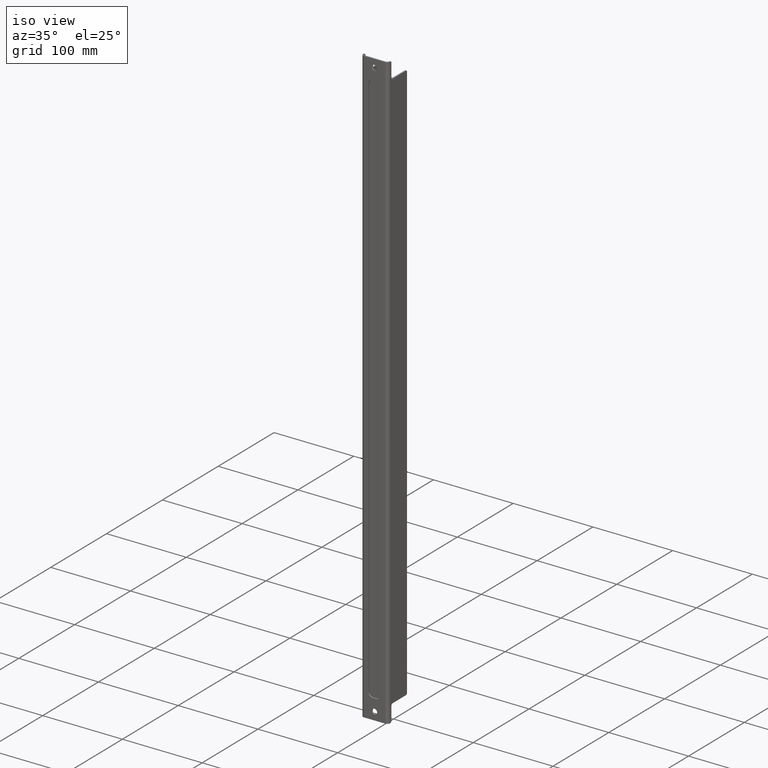
[diagram: clean part render]
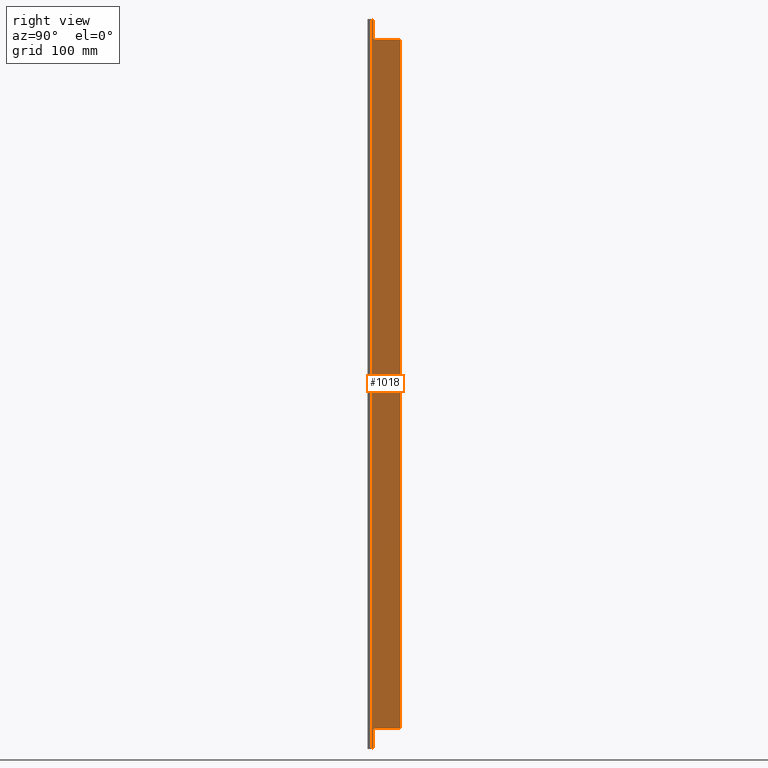
[diagram: tour spotlight — one face highlighted and labeled with its STEP entity id]
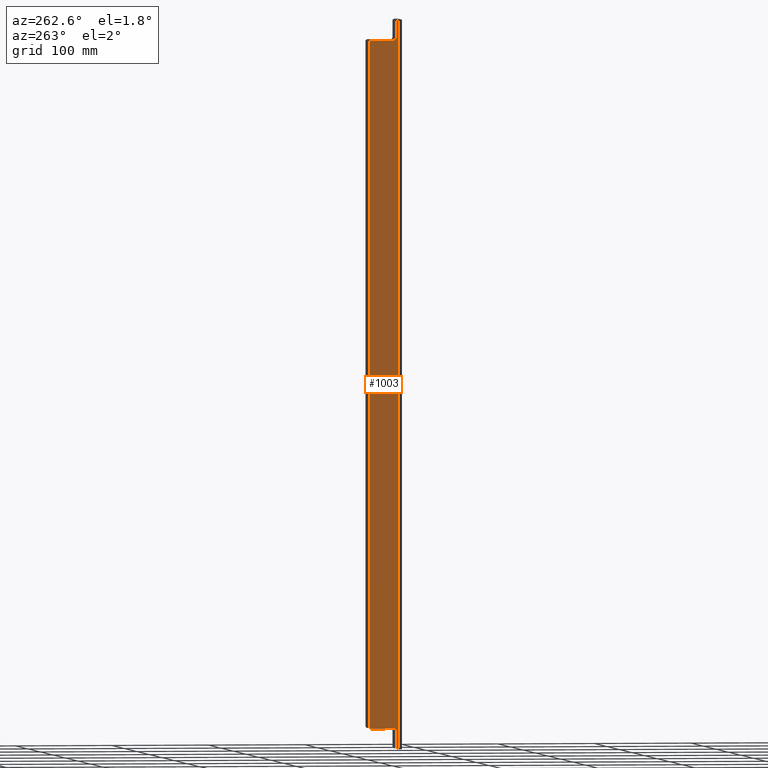
[diagram: tour spotlight — one face highlighted and labeled with its STEP entity id]
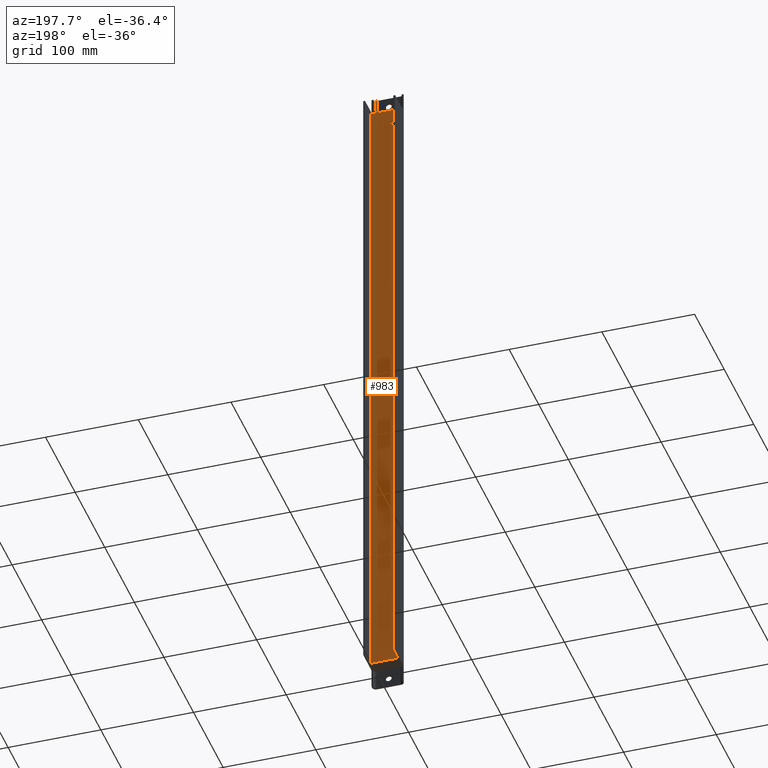
[diagram: tour spotlight — one face highlighted and labeled with its STEP entity id]
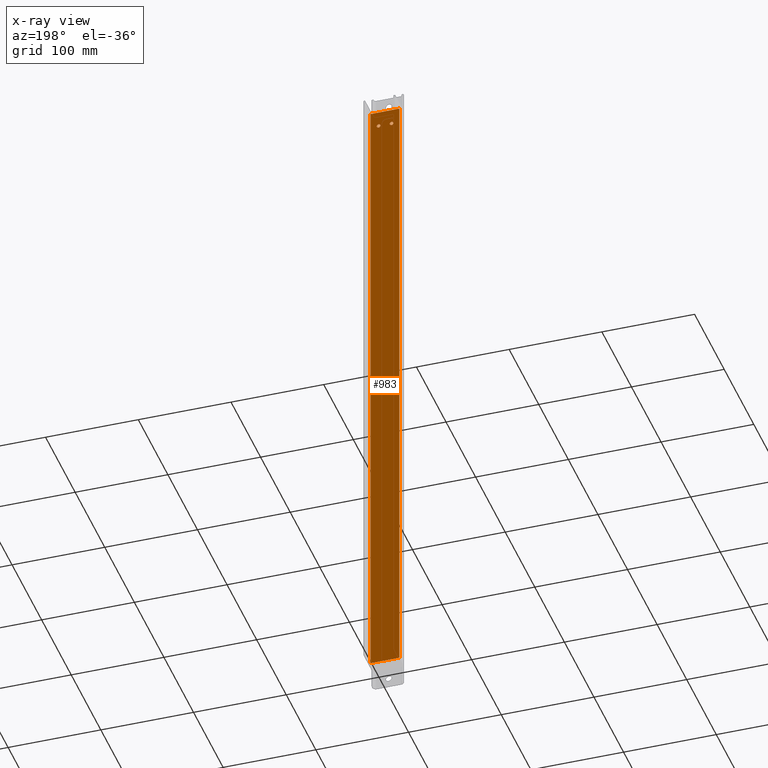
[diagram: x-ray of the same camera — body ghosted, this tour face saturated]
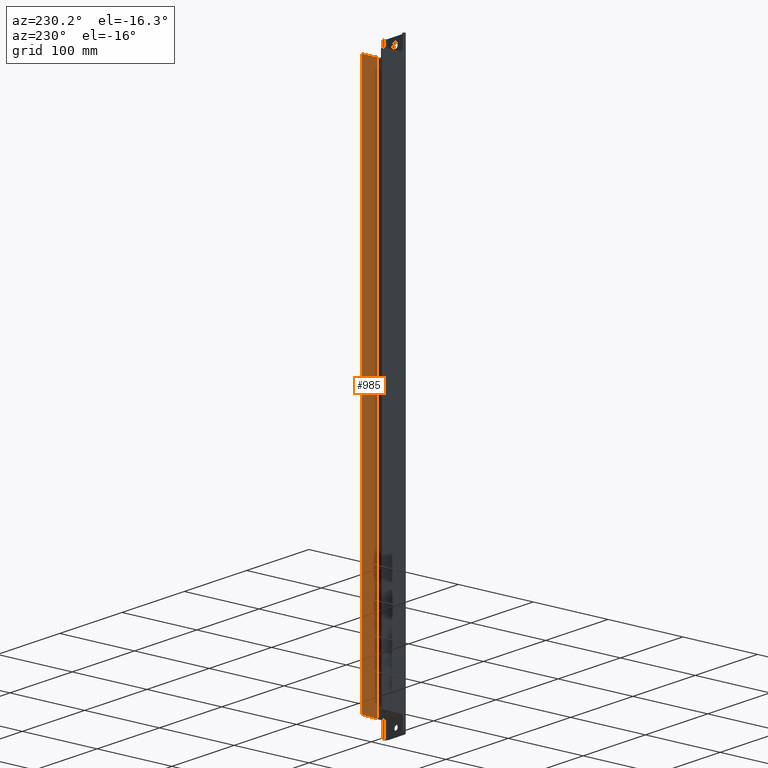
[diagram: tour spotlight — one face highlighted and labeled with its STEP entity id]
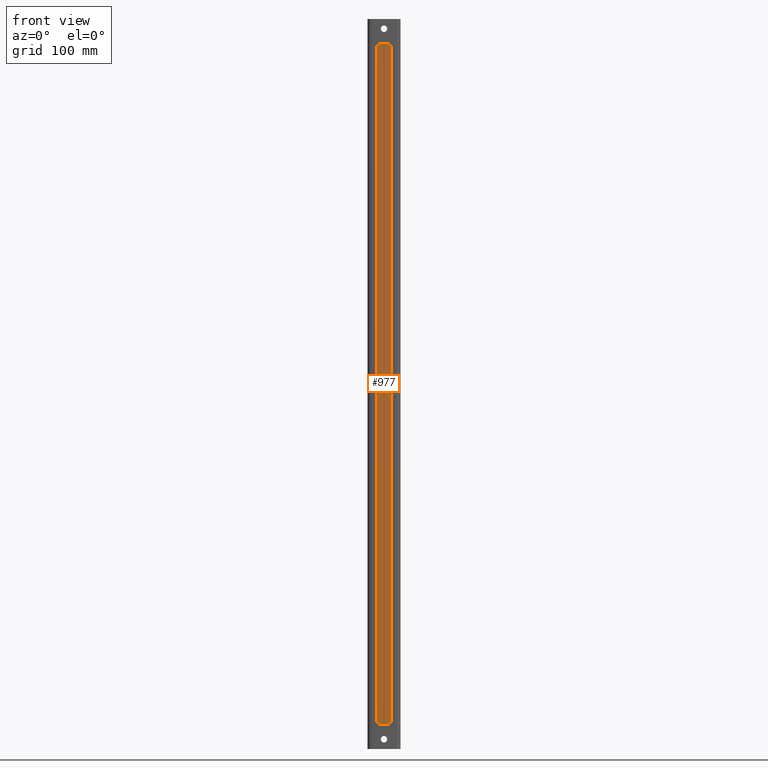
[diagram: tour spotlight — one face highlighted and labeled with its STEP entity id]
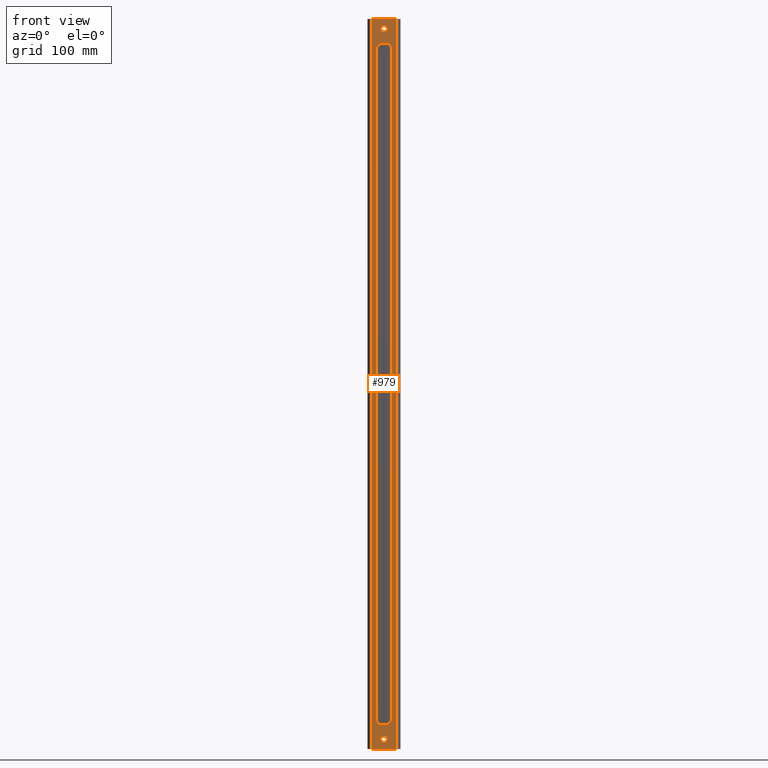
[diagram: tour spotlight — one face highlighted and labeled with its STEP entity id]
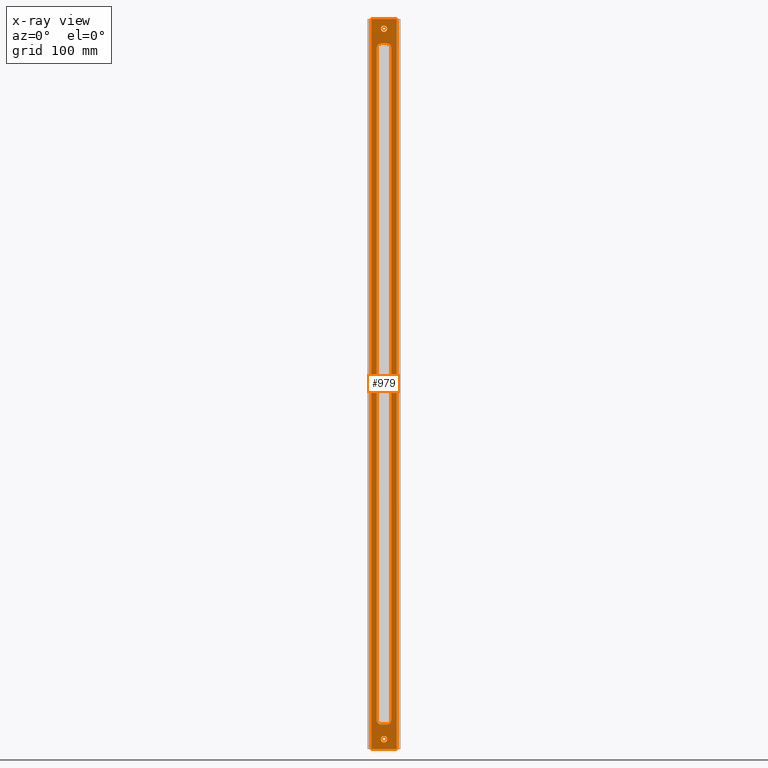
[diagram: x-ray of the same camera — body ghosted, this tour face saturated]
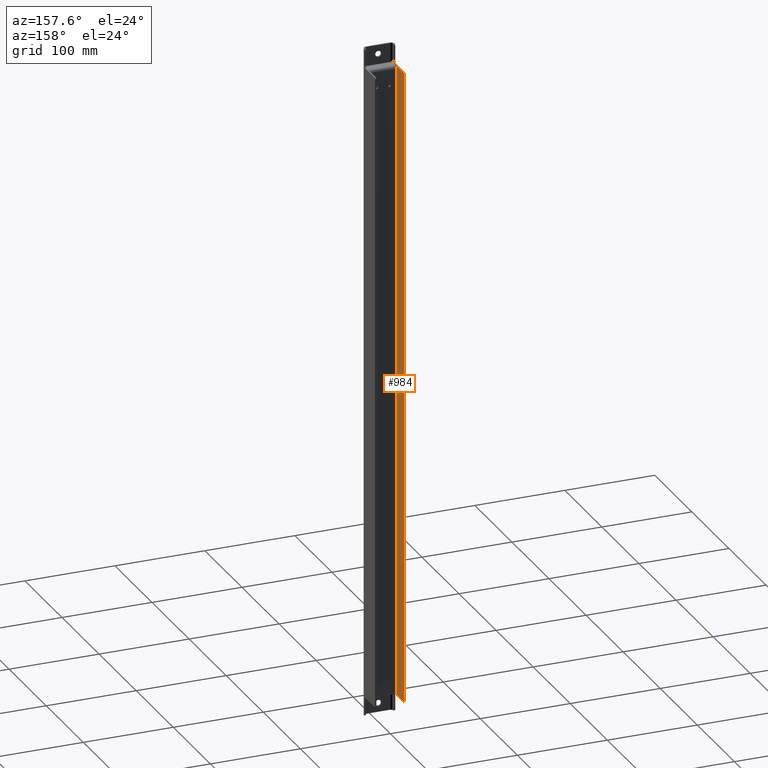
[diagram: tour spotlight — one face highlighted and labeled with its STEP entity id]
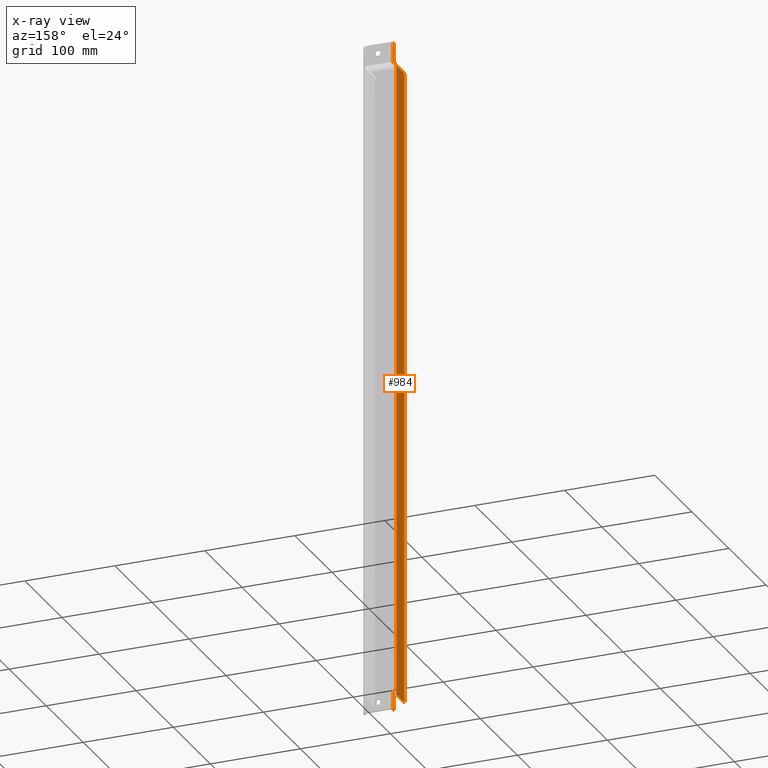
[diagram: x-ray of the same camera — body ghosted, this tour face saturated]
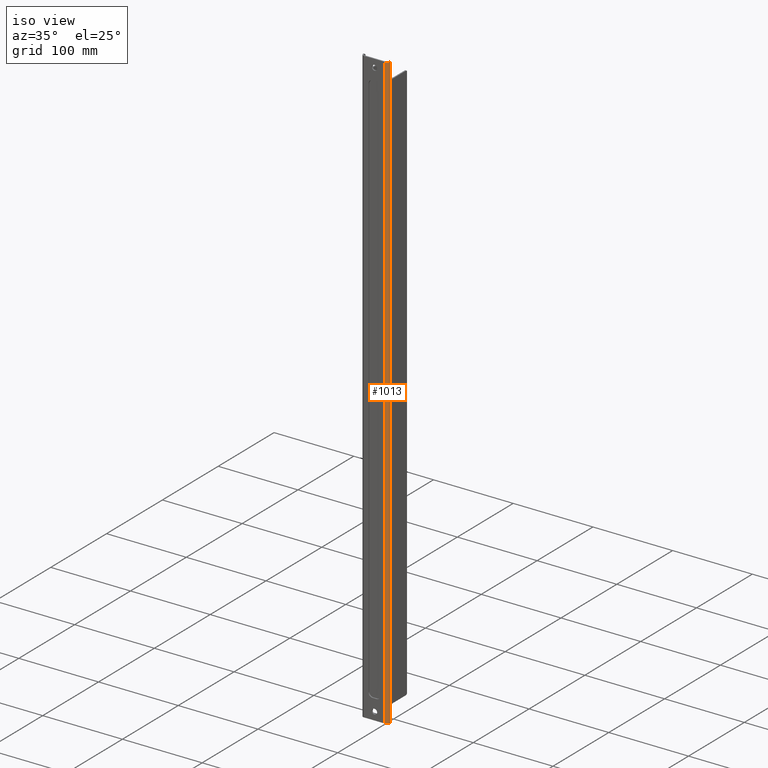
[diagram: tour spotlight — one face highlighted and labeled with its STEP entity id]
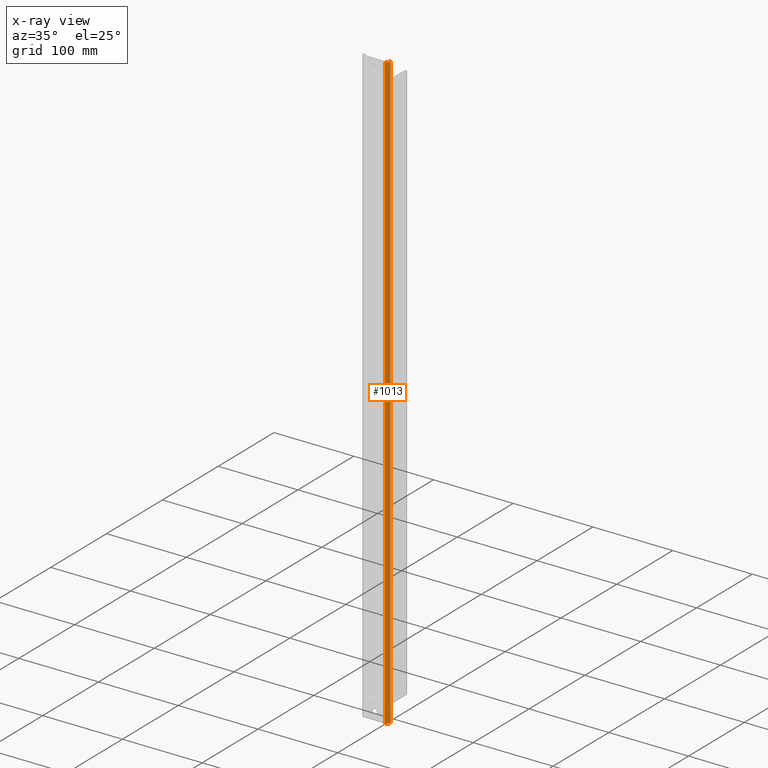
[diagram: x-ray of the same camera — body ghosted, this tour face saturated]
A machine part: a face-by-face anatomy tour. The part has 57 B-rep faces; the first image is the clean iso view, then the 8 largest visible faces are spotlighted one at a time (largest first), each with its STEP entity span.

Face 1 — right view, entity #1018. In plain terms, the highlighted planar face has unit normal (1, -0, 0).
Definition (entity closure, byte-faithful):
#90=LINE('',#1720,#178);
#95=LINE('',#1734,#183);
#96=LINE('',#1738,#184);
#97=LINE('',#1742,#185);
#98=LINE('',#1746,#186);
#99=LINE('',#1750,#187);
#178=VECTOR('',#1410,1000.);
#183=VECTOR('',#1429,1000.);
#184=VECTOR('',#1432,1000.);
#185=VECTOR('',#1435,1000.);
#186=VECTOR('',#1438,1000.);
#187=VECTOR('',#1441,1000.);
#219=PLANE('',#1140);
#457=ORIENTED_EDGE('',*,*,#633,.T.);
#458=ORIENTED_EDGE('',*,*,#636,.T.);
#459=ORIENTED_EDGE('',*,*,#640,.T.);
#460=ORIENTED_EDGE('',*,*,#641,.T.);
#461=ORIENTED_EDGE('',*,*,#642,.T.);
#462=ORIENTED_EDGE('',*,*,#643,.T.);
#463=ORIENTED_EDGE('',*,*,#644,.F.);
#464=ORIENTED_EDGE('',*,*,#645,.T.);
#465=ORIENTED_EDGE('',*,*,#646,.T.);
#466=ORIENTED_EDGE('',*,*,#647,.T.);
#467=ORIENTED_EDGE('',*,*,#648,.T.);
#468=ORIENTED_EDGE('',*,*,#638,.T.);
#633=EDGE_CURVE('',#741,#742,#90,.T.);
#636=EDGE_CURVE('',#742,#743,#803,.T.);
#638=EDGE_CURVE('',#744,#741,#804,.T.);
#640=EDGE_CURVE('',#743,#745,#95,.T.);
#641=EDGE_CURVE('',#745,#746,#805,.T.);
#642=EDGE_CURVE('',#746,#747,#96,.T.);
#643=EDGE_CURVE('',#747,#748,#806,.T.);
#644=EDGE_CURVE('',#749,#748,#97,.T.);
#645=EDGE_CURVE('',#749,#750,#807,.T.);
#646=EDGE_CURVE('',#750,#751,#98,.T.);
#647=EDGE_CURVE('',#751,#752,#808,.T.);
#648=EDGE_CURVE('',#752,#744,#99,.T.);
#741=VERTEX_POINT('',#1717);
#742=VERTEX_POINT('',#1719);
#743=VERTEX_POINT('',#1727);
#744=VERTEX_POINT('',#1731);
#745=VERTEX_POINT('',#1735);
#746=VERTEX_POINT('',#1737);
#747=VERTEX_POINT('',#1739);
#748=VERTEX_POINT('',#1741);
#749=VERTEX_POINT('',#1743);
#750=VERTEX_POINT('',#1745);
#751=VERTEX_POINT('',#1747);
#752=VERTEX_POINT('',#1749);
#803=CIRCLE('',#1137,2.);
#804=CIRCLE('',#1139,2.);
#805=CIRCLE('',#1141,2.);
#806=CIRCLE('',#1142,2.);
#807=CIRCLE('',#1143,2.);
#808=CIRCLE('',#1144,2.);
#865=EDGE_LOOP('',(#457,#458,#459,#460,#461,#462,#463,#464,#465,#466,#467,
#468));
#933=FACE_BOUND('',#865,.T.);
#1018=ADVANCED_FACE('',(#933),#219,.T.);
#1137=AXIS2_PLACEMENT_3D('',#1726,#1419,#1420);
#1139=AXIS2_PLACEMENT_3D('',#1730,#1424,#1425);
#1140=AXIS2_PLACEMENT_3D('',#1733,#1427,#1428);
#1141=AXIS2_PLACEMENT_3D('',#1736,#1430,#1431);
#1142=AXIS2_PLACEMENT_3D('',#1740,#1433,#1434);
#1143=AXIS2_PLACEMENT_3D('',#1744,#1436,#1437);
#1144=AXIS2_PLACEMENT_3D('',#1748,#1439,#1440);
#1410=DIRECTION('',(8.93686180177302E-17,1.31838984174237E-16,-1.));
#1419=DIRECTION('',(1.,-4.06163832661068E-16,8.93686180177302E-17));
#1420=DIRECTION('',(8.93686180177302E-17,1.66533453693773E-16,-1.));
#1424=DIRECTION('',(1.,-4.06163832661068E-16,8.93686180177302E-17));
#1425=DIRECTION('',(8.93686180177302E-17,1.66533453693773E-16,-1.));
#1427=DIRECTION('',(1.,-4.06163832661068E-16,8.93686180177302E-17));
#1428=DIRECTION('',(8.93686180177302E-17,1.66533453693773E-16,-1.));
#1429=DIRECTION('',(-8.93686180177302E-17,-1.66533453693773E-16,1.));
#1430=DIRECTION('',(-1.,4.06163832661068E-16,-8.93686180177302E-17));
#1431=DIRECTION('',(8.93686180177302E-17,1.66533453693773E-16,-1.));
#1432=DIRECTION('',(4.06163832661068E-16,1.,1.66533453693773E-16));
#1433=DIRECTION('',(1.,-4.06163832661068E-16,8.93686180177302E-17));
#1434=DIRECTION('',(8.93686180177302E-17,1.66533453693773E-16,-1.));
#1435=DIRECTION('',(8.93686180177302E-17,1.66533453693773E-16,-1.));
#1436=DIRECTION('',(1.,-4.06163832661068E-16,8.93686180177302E-17));
#1437=DIRECTION('',(8.93686180177302E-17,1.66533453693773E-16,-1.));
#1438=DIRECTION('',(-4.06163832661068E-16,-1.,-1.66533453693773E-16));
#1439=DIRECTION('',(-1.,4.06163832661068E-16,-8.93686180177302E-17));
#1440=DIRECTION('',(8.93686180177302E-17,1.66533453693773E-16,-1.));
#1441=DIRECTION('',(-8.93686180177302E-17,-4.2624633981144E-17,1.));
#1717=CARTESIAN_POINT('',(17.,-30.0130367319026,375.));
#1719=CARTESIAN_POINT('',(17.0000000000001,-30.0130367319023,-375.));
#1720=CARTESIAN_POINT('',(17.,-30.0130367319026,-1.92994200509913E-15));
#1726=CARTESIAN_POINT('',(17.0000000000002,-30.0130367319021,-373.));
#1727=CARTESIAN_POINT('',(17.0000000000002,-28.0130367319021,-373.));
#1730=CARTESIAN_POINT('',(17.,-30.0130367319026,373.));
#1731=CARTESIAN_POINT('',(17.,-28.0130367319026,373.));
#1733=CARTESIAN_POINT('',(17.,-32.5130367319026,-2.25953946553472E-15));
#1734=CARTESIAN_POINT('',(17.0000000000001,-28.0130367319025,-250.));
#1735=CARTESIAN_POINT('',(17.0000000000001,-28.0130367319025,-356.));
#1736=CARTESIAN_POINT('',(17.0000000000002,-26.0130367319021,-356.));
#1737=CARTESIAN_POINT('',(17.0000000000002,-26.0130367319021,-354.));
#1738=CARTESIAN_POINT('',(17.0000000000002,-9.51303673190205,-354.));
#1739=CARTESIAN_POINT('',(17.,-2.01303673190216,-354.));
#1740=CARTESIAN_POINT('',(17.,-2.01303673190216,-352.));
#1741=CARTESIAN_POINT('',(16.9999999999999,-0.0130367319026145,-352.));
#1742=CARTESIAN_POINT('',(16.9999999999999,-0.0130367319026107,-375.));
#1743=CARTESIAN_POINT('',(16.9999999999998,-0.0130367319026905,352.));
#1744=CARTESIAN_POINT('',(16.9999999999998,-2.01303673190269,352.));
#1745=CARTESIAN_POINT('',(17.,-2.01303673190269,354.));
#1746=CARTESIAN_POINT('',(17.,-9.51303673190258,354.));
#1747=CARTESIAN_POINT('',(17.,-26.0130367319026,354.));
#1748=CARTESIAN_POINT('',(17.,-26.0130367319026,356.));
#1749=CARTESIAN_POINT('',(17.,-28.0130367319026,356.));
#1750=CARTESIAN_POINT('',(17.,-28.0130367319026,500.));

Face 2 — auxiliary view, entity #1003. In plain terms, the highlighted planar face has unit normal (-1, -0, 0).
Definition (entity closure, byte-faithful):
#72=LINE('',#1669,#160);
#77=LINE('',#1681,#165);
#78=LINE('',#1683,#166);
#79=LINE('',#1687,#167);
#80=LINE('',#1691,#168);
#81=LINE('',#1695,#169);
#160=VECTOR('',#1350,1000.);
#165=VECTOR('',#1365,1000.);
#166=VECTOR('',#1366,1000.);
#167=VECTOR('',#1369,1000.);
#168=VECTOR('',#1372,1000.);
#169=VECTOR('',#1375,1000.);
#211=PLANE('',#1117);
#381=ORIENTED_EDGE('',*,*,#614,.F.);
#382=ORIENTED_EDGE('',*,*,#612,.T.);
#383=ORIENTED_EDGE('',*,*,#607,.T.);
#384=ORIENTED_EDGE('',*,*,#609,.T.);
#385=ORIENTED_EDGE('',*,*,#615,.F.);
#386=ORIENTED_EDGE('',*,*,#616,.T.);
#387=ORIENTED_EDGE('',*,*,#617,.F.);
#388=ORIENTED_EDGE('',*,*,#618,.T.);
#389=ORIENTED_EDGE('',*,*,#619,.F.);
#390=ORIENTED_EDGE('',*,*,#620,.T.);
#391=ORIENTED_EDGE('',*,*,#621,.F.);
#392=ORIENTED_EDGE('',*,*,#622,.T.);
#607=EDGE_CURVE('',#729,#730,#72,.F.);
#609=EDGE_CURVE('',#730,#731,#795,.T.);
#612=EDGE_CURVE('',#732,#729,#796,.T.);
#614=EDGE_CURVE('',#732,#733,#77,.T.);
#615=EDGE_CURVE('',#734,#731,#78,.T.);
#616=EDGE_CURVE('',#734,#735,#797,.T.);
#617=EDGE_CURVE('',#736,#735,#79,.T.);
#618=EDGE_CURVE('',#736,#737,#798,.T.);
#619=EDGE_CURVE('',#738,#737,#80,.T.);
#620=EDGE_CURVE('',#738,#739,#799,.T.);
#621=EDGE_CURVE('',#740,#739,#81,.T.);
#622=EDGE_CURVE('',#740,#733,#800,.T.);
#729=VERTEX_POINT('',#1666);
#730=VERTEX_POINT('',#1668);
#731=VERTEX_POINT('',#1672);
#732=VERTEX_POINT('',#1678);
#733=VERTEX_POINT('',#1682);
#734=VERTEX_POINT('',#1684);
#735=VERTEX_POINT('',#1686);
#736=VERTEX_POINT('',#1688);
#737=VERTEX_POINT('',#1690);
#738=VERTEX_POINT('',#1692);
#739=VERTEX_POINT('',#1694);
#740=VERTEX_POINT('',#1696);
#795=CIRCLE('',#1114,2.);
#796=CIRCLE('',#1116,2.);
#797=CIRCLE('',#1118,2.);
#798=CIRCLE('',#1119,2.);
#799=CIRCLE('',#1120,2.);
#800=CIRCLE('',#1121,2.);
#850=EDGE_LOOP('',(#381,#382,#383,#384,#385,#386,#387,#388,#389,#390,#391,
#392));
#918=FACE_BOUND('',#850,.T.);
#1003=ADVANCED_FACE('',(#918),#211,.T.);
#1114=AXIS2_PLACEMENT_3D('',#1673,#1354,#1355);
#1116=AXIS2_PLACEMENT_3D('',#1677,#1360,#1361);
#1117=AXIS2_PLACEMENT_3D('',#1680,#1363,#1364);
#1118=AXIS2_PLACEMENT_3D('',#1685,#1367,#1368);
#1119=AXIS2_PLACEMENT_3D('',#1689,#1370,#1371);
#1120=AXIS2_PLACEMENT_3D('',#1693,#1373,#1374);
#1121=AXIS2_PLACEMENT_3D('',#1697,#1376,#1377);
#1350=DIRECTION('',(-3.32185076179637E-17,1.66533453693773E-16,-1.));
#1354=DIRECTION('',(-1.,-3.10099449920508E-15,3.32185076179632E-17));
#1355=DIRECTION('',(3.06328311929254E-15,-1.,-1.66533453693773E-16));
#1360=DIRECTION('',(-1.,-3.10099449920508E-15,3.32185076179632E-17));
#1361=DIRECTION('',(3.06328311929254E-15,-1.,-1.66533453693773E-16));
#1363=DIRECTION('',(-1.,-3.10099449920508E-15,3.32185076179632E-17));
#1364=DIRECTION('',(3.10099449920508E-15,-1.,-1.66533453693773E-16));
#1365=DIRECTION('',(-8.93686180177302E-17,-1.66533453693773E-16,1.));
#1366=DIRECTION('',(-8.93686180177302E-17,-4.2624633981144E-17,1.));
#1367=DIRECTION('',(1.,3.10099449920508E-15,-3.32185076179632E-17));
#1368=DIRECTION('',(3.06328311929254E-15,-1.,-1.66533453693773E-16));
#1369=DIRECTION('',(-4.06163832661068E-16,-1.,-1.66533453693773E-16));
#1370=DIRECTION('',(-1.,-3.10099449920508E-15,3.32185076179632E-17));
#1371=DIRECTION('',(3.06328311929254E-15,-1.,-1.66533453693773E-16));
#1372=DIRECTION('',(3.32185076179638E-17,-1.66533453693773E-16,1.));
#1373=DIRECTION('',(-1.,-3.10099449920508E-15,3.32185076179632E-17));
#1374=DIRECTION('',(3.06328311929254E-15,-1.,-1.66533453693773E-16));
#1375=DIRECTION('',(4.06163832661068E-16,1.,1.66533453693773E-16));
#1376=DIRECTION('',(1.,3.10099449920508E-15,-3.32185076179632E-17));
#1377=DIRECTION('',(3.06328311929254E-15,-1.,-1.66533453693773E-16));
#1666=CARTESIAN_POINT('',(-16.9999999999999,-30.0130367319023,-375.));
#1668=CARTESIAN_POINT('',(-16.9999999999999,-30.0130367319026,375.));
#1669=CARTESIAN_POINT('',(-16.9999999999999,-30.0130367319026,-2.48839868821381E-15));
#1672=CARTESIAN_POINT('',(-16.9999999999999,-28.0130367319027,373.));
#1673=CARTESIAN_POINT('',(-16.9999999999999,-30.0130367319026,373.));
#1677=CARTESIAN_POINT('',(-16.9999999999999,-30.0130367319021,-373.));
#1678=CARTESIAN_POINT('',(-16.9999999999998,-28.0130367319021,-373.));
#1680=CARTESIAN_POINT('',(-16.9999999999999,-32.5130367319027,-3.94163086918529E-15));
#1681=CARTESIAN_POINT('',(-16.9999999999999,-28.0130367319026,-250.));
#1682=CARTESIAN_POINT('',(-16.9999999999998,-28.0130367319026,-356.));
#1683=CARTESIAN_POINT('',(-16.9999999999999,-28.0130367319027,500.));
#1684=CARTESIAN_POINT('',(-16.9999999999999,-28.0130367319026,356.));
#1685=CARTESIAN_POINT('',(-16.9999999999999,-26.0130367319026,356.));
#1686=CARTESIAN_POINT('',(-16.9999999999999,-26.0130367319026,354.));
#1687=CARTESIAN_POINT('',(-16.9999999999999,-9.51303673190265,354.));
#1688=CARTESIAN_POINT('',(-17.0000000000001,-2.01303673190275,354.));
#1689=CARTESIAN_POINT('',(-17.0000000000001,-2.01303673190275,352.));
#1690=CARTESIAN_POINT('',(-17.0000000000001,-0.0130367319027977,352.));
#1691=CARTESIAN_POINT('',(-17.0000000000001,-0.0130367319028015,375.));
#1692=CARTESIAN_POINT('',(-17.0000000000001,-0.0130367319022291,-352.));
#1693=CARTESIAN_POINT('',(-17.0000000000001,-2.01303673190223,-352.));
#1694=CARTESIAN_POINT('',(-16.9999999999998,-2.01303673190217,-354.));
#1695=CARTESIAN_POINT('',(-16.9999999999998,-9.51303673190212,-354.));
#1696=CARTESIAN_POINT('',(-16.9999999999998,-26.0130367319021,-354.));
#1697=CARTESIAN_POINT('',(-16.9999999999999,-26.0130367319021,-356.));

Face 3 — auxiliary view, entity #983. An x-ray twin of the same camera follows (body ghosted, this face saturated) — the face is partly hidden behind the body. In plain terms, the highlighted planar face has unit normal (0, 1, -0).
Definition (entity closure, byte-faithful):
#46=LINE('',#1574,#134);
#47=LINE('',#1577,#135);
#48=LINE('',#1579,#136);
#49=LINE('',#1581,#137);
#134=VECTOR('',#1246,1000.);
#135=VECTOR('',#1247,1000.);
#136=VECTOR('',#1248,1000.);
#137=VECTOR('',#1249,1000.);
#204=PLANE('',#1073);
#275=ORIENTED_EDGE('',*,*,#514,.F.);
#276=ORIENTED_EDGE('',*,*,#516,.F.);
#277=ORIENTED_EDGE('',*,*,#559,.T.);
#278=ORIENTED_EDGE('',*,*,#560,.T.);
#279=ORIENTED_EDGE('',*,*,#561,.T.);
#280=ORIENTED_EDGE('',*,*,#562,.T.);
#514=EDGE_CURVE('',#658,#658,#754,.T.);
#516=EDGE_CURVE('',#660,#660,#756,.T.);
#559=EDGE_CURVE('',#701,#702,#46,.T.);
#560=EDGE_CURVE('',#702,#703,#47,.T.);
#561=EDGE_CURVE('',#703,#704,#48,.T.);
#562=EDGE_CURVE('',#704,#701,#49,.T.);
#658=VERTEX_POINT('',#1477);
#660=VERTEX_POINT('',#1484);
#701=VERTEX_POINT('',#1575);
#702=VERTEX_POINT('',#1576);
#703=VERTEX_POINT('',#1578);
#704=VERTEX_POINT('',#1580);
#754=CIRCLE('',#1045,2.);
#756=CIRCLE('',#1050,2.);
#826=EDGE_LOOP('',(#275));
#827=EDGE_LOOP('',(#276));
#828=EDGE_LOOP('',(#277,#278,#279,#280));
#894=FACE_BOUND('',#826,.T.);
#895=FACE_BOUND('',#827,.T.);
#896=FACE_BOUND('',#828,.T.);
#983=ADVANCED_FACE('',(#894,#895,#896),#204,.T.);
#1045=AXIS2_PLACEMENT_3D('',#1476,#1162,#1163);
#1050=AXIS2_PLACEMENT_3D('',#1483,#1172,#1173);
#1073=AXIS2_PLACEMENT_3D('',#1573,#1244,#1245);
#1162=DIRECTION('',(4.06163832661068E-16,1.,-3.32698173895069E-15));
#1163=DIRECTION('',(9.21833731195405E-17,-3.32698173895069E-15,-1.));
#1172=DIRECTION('',(4.06163832661068E-16,1.,-3.32698173895069E-15));
#1173=DIRECTION('',(9.21833731195405E-17,-3.32698173895069E-15,-1.));
#1244=DIRECTION('',(4.06163832661068E-16,1.,-3.32494788514936E-15));
#1245=DIRECTION('',(-1.,4.06163832661068E-16,6.76398658185478E-32));
#1246=DIRECTION('',(-1.21257418434899E-16,-3.32494788514936E-15,-1.));
#1247=DIRECTION('',(-1.,4.06163832661068E-16,6.76398658185534E-32));
#1248=DIRECTION('',(1.21257418434899E-16,3.32494788514936E-15,1.));
#1249=DIRECTION('',(1.,-4.06163832661068E-16,-6.76398658185534E-32));
#1476=CARTESIAN_POINT('',(7.,-20.513036731901,333.5));
#1477=CARTESIAN_POINT('',(7.,-20.513036731901,331.5));
#1483=CARTESIAN_POINT('',(-7.,-20.513036731901,333.5));
#1484=CARTESIAN_POINT('',(-7.,-20.513036731901,331.5));
#1573=CARTESIAN_POINT('',(4.66701312594012E-15,-20.5130367319013,-3.78058567638503E-14));
#1574=CARTESIAN_POINT('',(15.5000000000001,-20.5130367319001,350.5));
#1575=CARTESIAN_POINT('',(15.5,-20.5130367319009,350.5));
#1576=CARTESIAN_POINT('',(15.5,-20.5130367319011,-350.5));
#1577=CARTESIAN_POINT('',(-10.,-20.5130367319011,-350.5));
#1578=CARTESIAN_POINT('',(-15.4999999999999,-20.5130367319012,-350.5));
#1579=CARTESIAN_POINT('',(-15.4999999999998,-20.5130367319002,350.5));
#1580=CARTESIAN_POINT('',(-15.4999999999998,-20.5130367319002,350.5));
#1581=CARTESIAN_POINT('',(9.99999999999997,-20.5130367319009,350.5));

Face 4 — auxiliary view, entity #985. In plain terms, the highlighted planar face has unit normal (1, -0, 0).
Definition (entity closure, byte-faithful):
#40=LINE('',#1554,#128);
#45=LINE('',#1569,#133);
#46=LINE('',#1574,#134);
#57=LINE('',#1613,#145);
#58=LINE('',#1617,#146);
#59=LINE('',#1621,#147);
#60=LINE('',#1625,#148);
#61=LINE('',#1629,#149);
#62=LINE('',#1633,#150);
#63=LINE('',#1637,#151);
#128=VECTOR('',#1228,1000.);
#133=VECTOR('',#1239,1000.);
#134=VECTOR('',#1246,1000.);
#145=VECTOR('',#1281,1000.);
#146=VECTOR('',#1284,1000.);
#147=VECTOR('',#1287,1000.);
#148=VECTOR('',#1290,1000.);
#149=VECTOR('',#1293,1000.);
#150=VECTOR('',#1296,1000.);
#151=VECTOR('',#1299,1000.);
#206=PLANE('',#1083);
#299=ORIENTED_EDGE('',*,*,#556,.F.);
#300=ORIENTED_EDGE('',*,*,#578,.T.);
#301=ORIENTED_EDGE('',*,*,#559,.F.);
#302=ORIENTED_EDGE('',*,*,#579,.T.);
#303=ORIENTED_EDGE('',*,*,#549,.F.);
#304=ORIENTED_EDGE('',*,*,#580,.F.);
#305=ORIENTED_EDGE('',*,*,#581,.T.);
#306=ORIENTED_EDGE('',*,*,#582,.T.);
#307=ORIENTED_EDGE('',*,*,#583,.T.);
#308=ORIENTED_EDGE('',*,*,#584,.T.);
#309=ORIENTED_EDGE('',*,*,#585,.T.);
#310=ORIENTED_EDGE('',*,*,#586,.T.);
#311=ORIENTED_EDGE('',*,*,#587,.T.);
#312=ORIENTED_EDGE('',*,*,#588,.T.);
#313=ORIENTED_EDGE('',*,*,#589,.T.);
#314=ORIENTED_EDGE('',*,*,#590,.T.);
#315=ORIENTED_EDGE('',*,*,#591,.T.);
#316=ORIENTED_EDGE('',*,*,#592,.F.);
#549=EDGE_CURVE('',#693,#694,#40,.T.);
#556=EDGE_CURVE('',#699,#700,#45,.T.);
#559=EDGE_CURVE('',#701,#702,#46,.T.);
#578=EDGE_CURVE('',#699,#702,#781,.T.);
#579=EDGE_CURVE('',#701,#694,#782,.T.);
#580=EDGE_CURVE('',#717,#693,#57,.T.);
#581=EDGE_CURVE('',#717,#718,#783,.T.);
#582=EDGE_CURVE('',#718,#719,#58,.T.);
#583=EDGE_CURVE('',#719,#720,#784,.T.);
#584=EDGE_CURVE('',#720,#721,#59,.T.);
#585=EDGE_CURVE('',#721,#722,#785,.T.);
#586=EDGE_CURVE('',#722,#723,#60,.T.);
#587=EDGE_CURVE('',#723,#724,#786,.T.);
#588=EDGE_CURVE('',#724,#725,#61,.T.);
#589=EDGE_CURVE('',#725,#726,#787,.T.);
#590=EDGE_CURVE('',#726,#727,#62,.T.);
#591=EDGE_CURVE('',#727,#728,#788,.T.);
#592=EDGE_CURVE('',#700,#728,#63,.T.);
#693=VERTEX_POINT('',#1555);
#694=VERTEX_POINT('',#1556);
#699=VERTEX_POINT('',#1568);
#700=VERTEX_POINT('',#1570);
#701=VERTEX_POINT('',#1575);
#702=VERTEX_POINT('',#1576);
#717=VERTEX_POINT('',#1614);
#718=VERTEX_POINT('',#1616);
#719=VERTEX_POINT('',#1618);
#720=VERTEX_POINT('',#1620);
#721=VERTEX_POINT('',#1622);
#722=VERTEX_POINT('',#1624);
#723=VERTEX_POINT('',#1626);
#724=VERTEX_POINT('',#1628);
#725=VERTEX_POINT('',#1630);
#726=VERTEX_POINT('',#1632);
#727=VERTEX_POINT('',#1634);
#728=VERTEX_POINT('',#1636);
#781=CIRCLE('',#1084,3.);
#782=CIRCLE('',#1085,3.);
#783=CIRCLE('',#1086,2.);
#784=CIRCLE('',#1087,2.);
#785=CIRCLE('',#1088,2.);
#786=CIRCLE('',#1089,2.);
#787=CIRCLE('',#1090,2.);
#788=CIRCLE('',#1091,2.);
#830=EDGE_LOOP('',(#299,#300,#301,#302,#303,#304,#305,#306,#307,#308,#309,
#310,#311,#312,#313,#314,#315,#316));
#898=FACE_BOUND('',#830,.T.);
#985=ADVANCED_FACE('',(#898),#206,.F.);
#1083=AXIS2_PLACEMENT_3D('',#1610,#1275,#1276);
#1084=AXIS2_PLACEMENT_3D('',#1611,#1277,#1278);
#1085=AXIS2_PLACEMENT_3D('',#1612,#1279,#1280);
#1086=AXIS2_PLACEMENT_3D('',#1615,#1282,#1283);
#1087=AXIS2_PLACEMENT_3D('',#1619,#1285,#1286);
#1088=AXIS2_PLACEMENT_3D('',#1623,#1288,#1289);
#1089=AXIS2_PLACEMENT_3D('',#1627,#1291,#1292);
#1090=AXIS2_PLACEMENT_3D('',#1631,#1294,#1295);
#1091=AXIS2_PLACEMENT_3D('',#1635,#1297,#1298);
#1228=DIRECTION('',(4.06163832661068E-16,1.,-8.6117241928882E-15));
#1239=DIRECTION('',(-5.71375592277907E-16,-1.,-1.96182842258948E-15));
#1246=DIRECTION('',(-1.21257418434899E-16,-3.32494788514936E-15,-1.));
#1275=DIRECTION('',(1.,-4.06163832661068E-16,8.93686180177302E-17));
#1276=DIRECTION('',(8.93686180177302E-17,1.66533453693773E-16,-1.));
#1277=DIRECTION('',(1.,-4.06163832661068E-16,8.93686180177302E-17));
#1278=DIRECTION('',(4.06163832661068E-16,1.,0.));
#1279=DIRECTION('',(1.,-4.06163832661068E-16,8.93686180177302E-17));
#1280=DIRECTION('',(4.06163832661068E-16,1.,0.));
#1281=DIRECTION('',(8.93686180177302E-17,1.31838984174237E-16,-1.));
#1282=DIRECTION('',(-1.,4.06163832661068E-16,-8.93686180177302E-17));
#1283=DIRECTION('',(8.93686180177302E-17,1.66533453693773E-16,-1.));
#1284=DIRECTION('',(8.93686180177302E-17,4.2624633981144E-17,-1.));
#1285=DIRECTION('',(1.,-4.06163832661068E-16,8.93686180177302E-17));
#1286=DIRECTION('',(8.93686180177302E-17,1.66533453693773E-16,-1.));
#1287=DIRECTION('',(4.06163832661068E-16,1.,1.66533453693773E-16));
#1288=DIRECTION('',(-1.,4.06163832661068E-16,-8.93686180177302E-17));
#1289=DIRECTION('',(8.93686180177302E-17,1.66533453693773E-16,-1.));
#1290=DIRECTION('',(8.93686180177302E-17,1.66533453693773E-16,-1.));
#1291=DIRECTION('',(-1.,4.06163832661068E-16,-8.93686180177302E-17));
#1292=DIRECTION('',(8.93686180177302E-17,1.66533453693773E-16,-1.));
#1293=DIRECTION('',(-4.06163832661068E-16,-1.,-1.66533453693773E-16));
#1294=DIRECTION('',(1.,-4.06163832661068E-16,8.93686180177302E-17));
#1295=DIRECTION('',(8.93686180177302E-17,1.66533453693773E-16,-1.));
#1296=DIRECTION('',(8.93686180177302E-17,1.66533453693773E-16,-1.));
#1297=DIRECTION('',(-1.,4.06163832661068E-16,-8.93686180177302E-17));
#1298=DIRECTION('',(8.93686180177551E-17,6.15323764163733E-14,-1.));
#1299=DIRECTION('',(8.93686180177302E-17,1.31838984174237E-16,-1.));
#1554=CARTESIAN_POINT('',(15.5000000000001,-20.5130367318991,353.5));
#1555=CARTESIAN_POINT('',(15.5,-30.0130367319026,353.5));
#1556=CARTESIAN_POINT('',(15.5000000000001,-23.5130367319009,353.5));
#1568=CARTESIAN_POINT('',(15.5,-23.5130367319011,-353.5));
#1569=CARTESIAN_POINT('',(15.5,-20.5130367318981,-353.5));
#1570=CARTESIAN_POINT('',(15.5,-30.0130367319021,-353.5));
#1574=CARTESIAN_POINT('',(15.5000000000001,-20.5130367319001,350.5));
#1575=CARTESIAN_POINT('',(15.5,-20.5130367319009,350.5));
#1576=CARTESIAN_POINT('',(15.5,-20.5130367319011,-350.5));
#1610=CARTESIAN_POINT('',(15.5,-32.5130367319026,-2.39359239256132E-15));
#1611=CARTESIAN_POINT('',(15.5,-23.5130367319011,-350.5));
#1612=CARTESIAN_POINT('',(15.5,-23.5130367319009,350.5));
#1613=CARTESIAN_POINT('',(15.5,-30.0130367319026,625.));
#1614=CARTESIAN_POINT('',(15.5,-30.0130367319026,375.));
#1615=CARTESIAN_POINT('',(15.5,-30.0130367319026,373.));
#1616=CARTESIAN_POINT('',(15.5,-28.0130367319026,373.));
#1617=CARTESIAN_POINT('',(15.5,-28.0130367319026,125.));
#1618=CARTESIAN_POINT('',(15.5,-28.0130367319026,356.));
#1619=CARTESIAN_POINT('',(15.5,-26.0130367319026,356.));
#1620=CARTESIAN_POINT('',(15.5,-26.0130367319026,354.));
#1621=CARTESIAN_POINT('',(15.5,-32.5130367319026,354.));
#1622=CARTESIAN_POINT('',(15.5,-2.01303673190269,354.));
#1623=CARTESIAN_POINT('',(15.4999999999998,-2.01303673190269,352.));
#1624=CARTESIAN_POINT('',(15.4999999999998,-0.0130367319026905,352.));
#1625=CARTESIAN_POINT('',(15.4999999999999,-0.0130367319026731,1.43667704239545E-15));
#1626=CARTESIAN_POINT('',(15.4999999999999,-0.0130367319026145,-352.));
#1627=CARTESIAN_POINT('',(15.5,-2.01303673190216,-352.));
#1628=CARTESIAN_POINT('',(15.5,-2.01303673190216,-354.));
#1629=CARTESIAN_POINT('',(15.5000000000002,-32.513036731902,-354.));
#1630=CARTESIAN_POINT('',(15.5000000000002,-26.0130367319021,-354.));
#1631=CARTESIAN_POINT('',(15.5000000000002,-26.0130367319021,-356.));
#1632=CARTESIAN_POINT('',(15.5000000000001,-28.0130367319025,-356.));
#1633=CARTESIAN_POINT('',(15.5,-28.0130367319026,125.));
#1634=CARTESIAN_POINT('',(15.5000000000002,-28.0130367319021,-373.));
#1635=CARTESIAN_POINT('',(15.5000000000002,-30.0130367319021,-373.));
#1636=CARTESIAN_POINT('',(15.5000000000001,-30.0130367319023,-375.));
#1637=CARTESIAN_POINT('',(15.5,-30.0130367319026,375.));

Face 5 — front view, entity #977. In plain terms, the highlighted planar face has unit normal (0, 1, -0).
Definition (entity closure, byte-faithful):
#20=LINE('',#1486,#108);
#21=LINE('',#1491,#109);
#22=LINE('',#1495,#110);
#23=LINE('',#1499,#111);
#108=VECTOR('',#1176,1000.);
#109=VECTOR('',#1179,1000.);
#110=VECTOR('',#1182,1000.);
#111=VECTOR('',#1185,1000.);
#198=PLANE('',#1051);
#231=ORIENTED_EDGE('',*,*,#517,.F.);
#232=ORIENTED_EDGE('',*,*,#518,.T.);
#233=ORIENTED_EDGE('',*,*,#519,.F.);
#234=ORIENTED_EDGE('',*,*,#520,.T.);
#235=ORIENTED_EDGE('',*,*,#521,.F.);
#236=ORIENTED_EDGE('',*,*,#522,.T.);
#237=ORIENTED_EDGE('',*,*,#523,.F.);
#238=ORIENTED_EDGE('',*,*,#524,.T.);
#517=EDGE_CURVE('',#661,#662,#20,.T.);
#518=EDGE_CURVE('',#661,#663,#757,.T.);
#519=EDGE_CURVE('',#664,#663,#21,.T.);
#520=EDGE_CURVE('',#664,#665,#758,.T.);
#521=EDGE_CURVE('',#666,#665,#22,.T.);
#522=EDGE_CURVE('',#666,#667,#759,.T.);
#523=EDGE_CURVE('',#668,#667,#23,.T.);
#524=EDGE_CURVE('',#668,#662,#760,.T.);
#661=VERTEX_POINT('',#1487);
#662=VERTEX_POINT('',#1488);
#663=VERTEX_POINT('',#1490);
#664=VERTEX_POINT('',#1492);
#665=VERTEX_POINT('',#1494);
#666=VERTEX_POINT('',#1496);
#667=VERTEX_POINT('',#1498);
#668=VERTEX_POINT('',#1500);
#757=CIRCLE('',#1052,5.);
#758=CIRCLE('',#1053,5.);
#759=CIRCLE('',#1054,5.);
#760=CIRCLE('',#1055,5.);
#815=EDGE_LOOP('',(#231,#232,#233,#234,#235,#236,#237,#238));
#883=FACE_BOUND('',#815,.T.);
#977=ADVANCED_FACE('',(#883),#198,.F.);
#1051=AXIS2_PLACEMENT_3D('',#1485,#1174,#1175);
#1052=AXIS2_PLACEMENT_3D('',#1489,#1177,#1178);
#1053=AXIS2_PLACEMENT_3D('',#1493,#1180,#1181);
#1054=AXIS2_PLACEMENT_3D('',#1497,#1183,#1184);
#1055=AXIS2_PLACEMENT_3D('',#1501,#1186,#1187);
#1174=DIRECTION('',(4.06163832661068E-16,1.,-3.32494788514936E-15));
#1175=DIRECTION('',(-1.,4.06163832661068E-16,6.76398658185478E-32));
#1176=DIRECTION('',(-8.93686180177302E-17,-1.66533453693773E-16,1.));
#1177=DIRECTION('',(-4.06163832661068E-16,-1.,-1.66533453693773E-16));
#1178=DIRECTION('',(-1.,4.06163832661068E-16,-8.93686180177302E-17));
#1179=DIRECTION('',(-1.,4.06163832661068E-16,-8.93686180177302E-17));
#1180=DIRECTION('',(-4.06163832661068E-16,-1.,-1.66533453693773E-16));
#1181=DIRECTION('',(-1.,4.06163832661068E-16,-8.93686180177302E-17));
#1182=DIRECTION('',(8.93686180177302E-17,1.66533453693773E-16,-1.));
#1183=DIRECTION('',(-4.06163832661068E-16,-1.,-1.66533453693773E-16));
#1184=DIRECTION('',(-1.,4.06163832661068E-16,-8.93686180177302E-17));
#1185=DIRECTION('',(1.,-4.06163832661068E-16,8.93686180177302E-17));
#1186=DIRECTION('',(-4.06163832661068E-16,-1.,-1.66533453693773E-16));
#1187=DIRECTION('',(-1.,4.06163832661068E-16,-8.93686180177302E-17));
#1485=CARTESIAN_POINT('',(4.05776737694852E-15,-32.5130367319029,-3.28184349361263E-14));
#1486=CARTESIAN_POINT('',(-7.50000000000005,-32.5130367319026,-4.00565866005999E-15));
#1487=CARTESIAN_POINT('',(-7.49999999999996,-32.513036731902,-345.));
#1488=CARTESIAN_POINT('',(-7.50000000000008,-32.5130367319026,345.));
#1489=CARTESIAN_POINT('',(-2.49999999999997,-32.513036731902,-345.));
#1490=CARTESIAN_POINT('',(-2.49999999999997,-32.513036731902,-350.));
#1491=CARTESIAN_POINT('',(7.55634866785535E-14,-32.513036731902,-350.));
#1492=CARTESIAN_POINT('',(2.50000000000007,-32.513036731902,-350.));
#1493=CARTESIAN_POINT('',(2.50000000000007,-32.513036731902,-345.));
#1494=CARTESIAN_POINT('',(7.50000000000001,-32.5130367319025,-345.));
#1495=CARTESIAN_POINT('',(7.49999999999998,-32.5130367319026,-2.93323524384723E-15));
#1496=CARTESIAN_POINT('',(7.49999999999995,-32.5130367319026,345.));
#1497=CARTESIAN_POINT('',(2.49999999999995,-32.5130367319026,345.));
#1498=CARTESIAN_POINT('',(2.49999999999995,-32.5130367319026,350.));
#1499=CARTESIAN_POINT('',(-3.42505811517635E-14,-32.5130367319026,350.));
#1500=CARTESIAN_POINT('',(-2.50000000000008,-32.5130367319026,350.));
#1501=CARTESIAN_POINT('',(-2.50000000000008,-32.5130367319026,345.));

Face 6 — front view, entity #979. An x-ray twin of the same camera follows (body ghosted, this face saturated) — the face is partly hidden behind the body. In plain terms, the highlighted planar face has unit normal (0, 1, 0).
Definition (entity closure, byte-faithful):
#28=LINE('',#1516,#116);
#29=LINE('',#1521,#117);
#30=LINE('',#1525,#118);
#31=LINE('',#1529,#119);
#32=LINE('',#1532,#120);
#33=LINE('',#1535,#121);
#34=LINE('',#1537,#122);
#35=LINE('',#1539,#123);
#116=VECTOR('',#1200,1000.);
#117=VECTOR('',#1203,1000.);
#118=VECTOR('',#1206,1000.);
#119=VECTOR('',#1209,1000.);
#120=VECTOR('',#1212,1000.);
#121=VECTOR('',#1213,1000.);
#122=VECTOR('',#1214,1000.);
#123=VECTOR('',#1215,1000.);
#200=PLANE('',#1058);
#244=ORIENTED_EDGE('',*,*,#530,.T.);
#245=ORIENTED_EDGE('',*,*,#531,.F.);
#246=ORIENTED_EDGE('',*,*,#532,.T.);
#247=ORIENTED_EDGE('',*,*,#533,.F.);
#248=ORIENTED_EDGE('',*,*,#534,.T.);
#249=ORIENTED_EDGE('',*,*,#535,.F.);
#250=ORIENTED_EDGE('',*,*,#536,.T.);
#251=ORIENTED_EDGE('',*,*,#537,.F.);
#252=ORIENTED_EDGE('',*,*,#538,.T.);
#253=ORIENTED_EDGE('',*,*,#539,.F.);
#254=ORIENTED_EDGE('',*,*,#540,.F.);
#255=ORIENTED_EDGE('',*,*,#541,.F.);
#256=ORIENTED_EDGE('',*,*,#542,.F.);
#257=ORIENTED_EDGE('',*,*,#543,.T.);
#530=EDGE_CURVE('',#674,#674,#762,.T.);
#531=EDGE_CURVE('',#675,#676,#28,.T.);
#532=EDGE_CURVE('',#675,#677,#763,.T.);
#533=EDGE_CURVE('',#678,#677,#29,.T.);
#534=EDGE_CURVE('',#678,#679,#764,.T.);
#535=EDGE_CURVE('',#680,#679,#30,.T.);
#536=EDGE_CURVE('',#680,#681,#765,.T.);
#537=EDGE_CURVE('',#682,#681,#31,.T.);
#538=EDGE_CURVE('',#682,#676,#766,.T.);
#539=EDGE_CURVE('',#683,#684,#32,.T.);
#540=EDGE_CURVE('',#685,#683,#33,.T.);
#541=EDGE_CURVE('',#686,#685,#34,.T.);
#542=EDGE_CURVE('',#684,#686,#35,.T.);
#543=EDGE_CURVE('',#687,#687,#767,.T.);
#674=VERTEX_POINT('',#1515);
#675=VERTEX_POINT('',#1517);
#676=VERTEX_POINT('',#1518);
#677=VERTEX_POINT('',#1520);
#678=VERTEX_POINT('',#1522);
#679=VERTEX_POINT('',#1524);
#680=VERTEX_POINT('',#1526);
#681=VERTEX_POINT('',#1528);
#682=VERTEX_POINT('',#1530);
#683=VERTEX_POINT('',#1533);
#684=VERTEX_POINT('',#1534);
#685=VERTEX_POINT('',#1536);
#686=VERTEX_POINT('',#1538);
#687=VERTEX_POINT('',#1541);
#762=CIRCLE('',#1059,3.29999999999997);
#763=CIRCLE('',#1060,5.);
#764=CIRCLE('',#1061,5.);
#765=CIRCLE('',#1062,5.);
#766=CIRCLE('',#1063,5.);
#767=CIRCLE('',#1064,3.29999999999997);
#818=EDGE_LOOP('',(#244));
#819=EDGE_LOOP('',(#245,#246,#247,#248,#249,#250,#251,#252));
#820=EDGE_LOOP('',(#253,#254,#255,#256));
#821=EDGE_LOOP('',(#257));
#886=FACE_BOUND('',#818,.T.);
#887=FACE_BOUND('',#819,.T.);
#888=FACE_BOUND('',#820,.T.);
#889=FACE_BOUND('',#821,.T.);
#979=ADVANCED_FACE('',(#886,#887,#888,#889),#200,.F.);
#1058=AXIS2_PLACEMENT_3D('',#1513,#1196,#1197);
#1059=AXIS2_PLACEMENT_3D('',#1514,#1198,#1199);
#1060=AXIS2_PLACEMENT_3D('',#1519,#1201,#1202);
#1061=AXIS2_PLACEMENT_3D('',#1523,#1204,#1205);
#1062=AXIS2_PLACEMENT_3D('',#1527,#1207,#1208);
#1063=AXIS2_PLACEMENT_3D('',#1531,#1210,#1211);
#1064=AXIS2_PLACEMENT_3D('',#1540,#1216,#1217);
#1196=DIRECTION('',(4.06163832661068E-16,1.,1.66533453693773E-16));
#1197=DIRECTION('',(-1.,4.06163832661068E-16,-8.93686180177302E-17));
#1198=DIRECTION('',(4.06163832661068E-16,1.,1.66533453693773E-16));
#1199=DIRECTION('',(-1.,4.06163832661068E-16,0.));
#1200=DIRECTION('',(-8.93686180177302E-17,-1.66533453693773E-16,1.));
#1201=DIRECTION('',(4.06163832661068E-16,1.,1.66533453693773E-16));
#1202=DIRECTION('',(-1.,4.06163832661068E-16,-8.93686180177302E-17));
#1203=DIRECTION('',(1.,-4.06163832661068E-16,8.93686180177302E-17));
#1204=DIRECTION('',(4.06163832661068E-16,1.,1.66533453693773E-16));
#1205=DIRECTION('',(-1.,4.06163832661068E-16,-8.93686180177302E-17));
#1206=DIRECTION('',(8.93686180177302E-17,1.66533453693773E-16,-1.));
#1207=DIRECTION('',(4.06163832661068E-16,1.,1.66533453693773E-16));
#1208=DIRECTION('',(-1.,4.06163832661068E-16,-8.93686180177302E-17));
#1209=DIRECTION('',(-1.,4.06163832661068E-16,-8.93686180177302E-17));
#1210=DIRECTION('',(4.06163832661068E-16,1.,1.66533453693773E-16));
#1211=DIRECTION('',(-1.,4.06163832661068E-16,-8.93686180177302E-17));
#1212=DIRECTION('',(-1.,4.06163832661068E-16,-8.93686180177302E-17));
#1213=DIRECTION('',(-3.43749899352818E-17,1.66533453693773E-16,-1.));
#1214=DIRECTION('',(1.,-4.06163832661068E-16,8.93686180177302E-17));
#1215=DIRECTION('',(3.32185076179637E-17,-1.66533453693773E-16,1.));
#1216=DIRECTION('',(4.06163832661068E-16,1.,1.66533453693773E-16));
#1217=DIRECTION('',(-1.,4.06163832661068E-16,0.));
#1513=CARTESIAN_POINT('',(-1.03104538151908E-14,-34.0130367319026,-3.71924713249427E-15));
#1514=CARTESIAN_POINT('',(-1.74730665500947E-14,-34.0130367319026,365.));
#1515=CARTESIAN_POINT('',(-3.29999999999999,-34.0130367319026,365.));
#1516=CARTESIAN_POINT('',(7.50000000000001,-34.0130367319025,-350.));
#1517=CARTESIAN_POINT('',(7.50000000000001,-34.0130367319025,-345.));
#1518=CARTESIAN_POINT('',(7.49999999999995,-34.0130367319026,345.));
#1519=CARTESIAN_POINT('',(2.50000000000007,-34.013036731902,-345.));
#1520=CARTESIAN_POINT('',(2.50000000000007,-34.013036731902,-350.));
#1521=CARTESIAN_POINT('',(-5.99999999999993,-34.013036731902,-350.));
#1522=CARTESIAN_POINT('',(-2.49999999999997,-34.013036731902,-350.));
#1523=CARTESIAN_POINT('',(-2.49999999999997,-34.013036731902,-345.));
#1524=CARTESIAN_POINT('',(-7.50000000000002,-34.0130367319025,-345.));
#1525=CARTESIAN_POINT('',(-7.50000000000002,-34.0130367319025,-350.));
#1526=CARTESIAN_POINT('',(-7.50000000000008,-34.0130367319026,345.));
#1527=CARTESIAN_POINT('',(-2.50000000000008,-34.0130367319026,345.));
#1528=CARTESIAN_POINT('',(-2.50000000000008,-34.0130367319026,350.));
#1529=CARTESIAN_POINT('',(-6.00000000000005,-34.0130367319026,350.));
#1530=CARTESIAN_POINT('',(2.49999999999995,-34.0130367319026,350.));
#1531=CARTESIAN_POINT('',(2.49999999999995,-34.0130367319026,345.));
#1532=CARTESIAN_POINT('',(-7.49999999999997,-34.013036731902,-375.));
#1533=CARTESIAN_POINT('',(13.0000000000001,-34.013036731902,-375.));
#1534=CARTESIAN_POINT('',(-13.,-34.013036731902,-375.));
#1535=CARTESIAN_POINT('',(13.0000000000001,-34.0130367319026,375.));
#1536=CARTESIAN_POINT('',(13.,-34.0130367319026,375.));
#1537=CARTESIAN_POINT('',(-7.49999999999999,-34.0130367319026,375.));
#1538=CARTESIAN_POINT('',(-13.,-34.0130367319026,375.));
#1539=CARTESIAN_POINT('',(-13.,-34.0130367319026,-3.28740653346074E-15));
#1540=CARTESIAN_POINT('',(1.34900564498443E-14,-34.013036731902,-365.));
#1541=CARTESIAN_POINT('',(-3.29999999999996,-34.013036731902,-365.));

Face 7 — auxiliary view, entity #984. An x-ray twin of the same camera follows (body ghosted, this face saturated) — the face is partly hidden behind the body. In plain terms, the highlighted planar face has unit normal (-1, -0, 0).
Definition (entity closure, byte-faithful):
#42=LINE('',#1559,#130);
#43=LINE('',#1564,#131);
#48=LINE('',#1579,#136);
#50=LINE('',#1585,#138);
#51=LINE('',#1589,#139);
#52=LINE('',#1593,#140);
#53=LINE('',#1597,#141);
#54=LINE('',#1601,#142);
#55=LINE('',#1605,#143);
#56=LINE('',#1609,#144);
#130=VECTOR('',#1230,1000.);
#131=VECTOR('',#1237,1000.);
#136=VECTOR('',#1248,1000.);
#138=VECTOR('',#1256,1000.);
#139=VECTOR('',#1259,1000.);
#140=VECTOR('',#1262,1000.);
#141=VECTOR('',#1265,1000.);
#142=VECTOR('',#1268,1000.);
#143=VECTOR('',#1271,1000.);
#144=VECTOR('',#1274,1000.);
#205=PLANE('',#1074);
#281=ORIENTED_EDGE('',*,*,#551,.F.);
#282=ORIENTED_EDGE('',*,*,#563,.T.);
#283=ORIENTED_EDGE('',*,*,#561,.F.);
#284=ORIENTED_EDGE('',*,*,#564,.T.);
#285=ORIENTED_EDGE('',*,*,#554,.F.);
#286=ORIENTED_EDGE('',*,*,#565,.F.);
#287=ORIENTED_EDGE('',*,*,#566,.T.);
#288=ORIENTED_EDGE('',*,*,#567,.T.);
#289=ORIENTED_EDGE('',*,*,#568,.T.);
#290=ORIENTED_EDGE('',*,*,#569,.T.);
#291=ORIENTED_EDGE('',*,*,#570,.T.);
#292=ORIENTED_EDGE('',*,*,#571,.T.);
#293=ORIENTED_EDGE('',*,*,#572,.T.);
#294=ORIENTED_EDGE('',*,*,#573,.T.);
#295=ORIENTED_EDGE('',*,*,#574,.T.);
#296=ORIENTED_EDGE('',*,*,#575,.T.);
#297=ORIENTED_EDGE('',*,*,#576,.T.);
#298=ORIENTED_EDGE('',*,*,#577,.F.);
#551=EDGE_CURVE('',#695,#696,#42,.T.);
#554=EDGE_CURVE('',#697,#698,#43,.T.);
#561=EDGE_CURVE('',#703,#704,#48,.T.);
#563=EDGE_CURVE('',#695,#704,#773,.T.);
#564=EDGE_CURVE('',#703,#698,#774,.T.);
#565=EDGE_CURVE('',#705,#697,#50,.T.);
#566=EDGE_CURVE('',#705,#706,#775,.T.);
#567=EDGE_CURVE('',#706,#707,#51,.T.);
#568=EDGE_CURVE('',#707,#708,#776,.T.);
#569=EDGE_CURVE('',#708,#709,#52,.T.);
#570=EDGE_CURVE('',#709,#710,#777,.T.);
#571=EDGE_CURVE('',#710,#711,#53,.T.);
#572=EDGE_CURVE('',#711,#712,#778,.T.);
#573=EDGE_CURVE('',#712,#713,#54,.T.);
#574=EDGE_CURVE('',#713,#714,#779,.T.);
#575=EDGE_CURVE('',#714,#715,#55,.T.);
#576=EDGE_CURVE('',#715,#716,#780,.T.);
#577=EDGE_CURVE('',#696,#716,#56,.T.);
#695=VERTEX_POINT('',#1558);
#696=VERTEX_POINT('',#1560);
#697=VERTEX_POINT('',#1565);
#698=VERTEX_POINT('',#1566);
#703=VERTEX_POINT('',#1578);
#704=VERTEX_POINT('',#1580);
#705=VERTEX_POINT('',#1586);
#706=VERTEX_POINT('',#1588);
#707=VERTEX_POINT('',#1590);
#708=VERTEX_POINT('',#1592);
#709=VERTEX_POINT('',#1594);
#710=VERTEX_POINT('',#1596);
#711=VERTEX_POINT('',#1598);
#712=VERTEX_POINT('',#1600);
#713=VERTEX_POINT('',#1602);
#714=VERTEX_POINT('',#1604);
#715=VERTEX_POINT('',#1606);
#716=VERTEX_POINT('',#1608);
#773=CIRCLE('',#1075,3.);
#774=CIRCLE('',#1076,3.);
#775=CIRCLE('',#1077,2.);
#776=CIRCLE('',#1078,2.);
#777=CIRCLE('',#1079,2.);
#778=CIRCLE('',#1080,2.);
#779=CIRCLE('',#1081,2.);
#780=CIRCLE('',#1082,2.);
#829=EDGE_LOOP('',(#281,#282,#283,#284,#285,#286,#287,#288,#289,#290,#291,
#292,#293,#294,#295,#296,#297,#298));
#897=FACE_BOUND('',#829,.T.);
#984=ADVANCED_FACE('',(#897),#205,.F.);
#1074=AXIS2_PLACEMENT_3D('',#1582,#1250,#1251);
#1075=AXIS2_PLACEMENT_3D('',#1583,#1252,#1253);
#1076=AXIS2_PLACEMENT_3D('',#1584,#1254,#1255);
#1077=AXIS2_PLACEMENT_3D('',#1587,#1257,#1258);
#1078=AXIS2_PLACEMENT_3D('',#1591,#1260,#1261);
#1079=AXIS2_PLACEMENT_3D('',#1595,#1263,#1264);
#1080=AXIS2_PLACEMENT_3D('',#1599,#1266,#1267);
#1081=AXIS2_PLACEMENT_3D('',#1603,#1269,#1270);
#1082=AXIS2_PLACEMENT_3D('',#1607,#1272,#1273);
#1230=DIRECTION('',(-2.40952073044229E-16,-1.,8.6117241928882E-15));
#1237=DIRECTION('',(4.06163832661068E-16,1.,1.96182842258948E-15));
#1248=DIRECTION('',(1.21257418434899E-16,3.32494788514936E-15,1.));
#1250=DIRECTION('',(-1.,-3.10099449920508E-15,3.32185076179632E-17));
#1251=DIRECTION('',(3.10099449920508E-15,-1.,-1.66533453693773E-16));
#1252=DIRECTION('',(-1.,-3.10099449920508E-15,3.32185076179632E-17));
#1253=DIRECTION('',(3.10099449920508E-15,-1.,0.));
#1254=DIRECTION('',(-1.,-3.10099449920508E-15,3.32185076179632E-17));
#1255=DIRECTION('',(3.10099449920508E-15,-1.,0.));
#1256=DIRECTION('',(3.32185076179638E-17,-1.43403807347416E-16,1.));
#1257=DIRECTION('',(1.,3.10099449920508E-15,-3.32185076179632E-17));
#1258=DIRECTION('',(3.06328311929254E-15,-1.,-1.66533453693773E-16));
#1259=DIRECTION('',(3.32185076179638E-17,-1.66533453693773E-16,1.));
#1260=DIRECTION('',(-1.,-3.10099449920508E-15,3.32185076179632E-17));
#1261=DIRECTION('',(3.06328311929254E-15,-1.,-1.66533453693773E-16));
#1262=DIRECTION('',(-3.10099449920508E-15,1.,1.66533453693773E-16));
#1263=DIRECTION('',(1.,3.10099449920508E-15,-3.32185076179632E-17));
#1264=DIRECTION('',(3.06328311929254E-15,-1.,-1.66533453693773E-16));
#1265=DIRECTION('',(3.32185076179638E-17,-1.66533453693773E-16,1.));
#1266=DIRECTION('',(1.,3.10099449920508E-15,-3.32185076179632E-17));
#1267=DIRECTION('',(3.06328311929255E-15,-1.,-1.66533453693773E-16));
#1268=DIRECTION('',(3.10099449920508E-15,-1.,-1.66533453693773E-16));
#1269=DIRECTION('',(-1.,-3.10099449920508E-15,3.32185076179632E-17));
#1270=DIRECTION('',(3.06328311929254E-15,-1.,-1.66533453693773E-16));
#1271=DIRECTION('',(3.32185076179639E-17,-4.2624633981144E-17,1.));
#1272=DIRECTION('',(1.,3.10099449920508E-15,-3.32185076179632E-17));
#1273=DIRECTION('',(3.06328311929254E-15,-1.,-1.66533453693773E-16));
#1274=DIRECTION('',(3.32185076179638E-17,-1.43403807347416E-16,1.));
#1558=CARTESIAN_POINT('',(-15.4999999999999,-23.5130367319009,353.5));
#1559=CARTESIAN_POINT('',(-15.4999999999998,-20.5130367318991,353.5));
#1560=CARTESIAN_POINT('',(-15.4999999999998,-30.0130367319026,353.5));
#1564=CARTESIAN_POINT('',(-15.4999999999999,-20.5130367318981,-353.5));
#1565=CARTESIAN_POINT('',(-15.4999999999998,-30.0130367319021,-353.5));
#1566=CARTESIAN_POINT('',(-15.4999999999999,-23.5130367319012,-353.5));
#1578=CARTESIAN_POINT('',(-15.4999999999999,-20.5130367319012,-350.5));
#1579=CARTESIAN_POINT('',(-15.4999999999998,-20.5130367319002,350.5));
#1580=CARTESIAN_POINT('',(-15.4999999999998,-20.5130367319002,350.5));
#1582=CARTESIAN_POINT('',(-15.4999999999999,-32.5130367319027,-3.99145863061223E-15));
#1583=CARTESIAN_POINT('',(-15.4999999999999,-23.513036731901,350.5));
#1584=CARTESIAN_POINT('',(-15.4999999999999,-23.5130367319012,-350.5));
#1585=CARTESIAN_POINT('',(-15.4999999999998,-30.0130367319026,-375.));
#1586=CARTESIAN_POINT('',(-15.4999999999999,-30.0130367319023,-375.));
#1587=CARTESIAN_POINT('',(-15.4999999999998,-30.0130367319021,-373.));
#1588=CARTESIAN_POINT('',(-15.4999999999999,-28.0130367319021,-373.));
#1589=CARTESIAN_POINT('',(-15.4999999999999,-28.0130367319027,125.));
#1590=CARTESIAN_POINT('',(-15.4999999999999,-28.0130367319026,-356.));
#1591=CARTESIAN_POINT('',(-15.4999999999999,-26.0130367319021,-356.));
#1592=CARTESIAN_POINT('',(-15.4999999999999,-26.0130367319021,-354.));
#1593=CARTESIAN_POINT('',(-15.4999999999998,-32.5130367319021,-354.));
#1594=CARTESIAN_POINT('',(-15.4999999999999,-2.01303673190217,-354.));
#1595=CARTESIAN_POINT('',(-15.5000000000001,-2.01303673190223,-352.));
#1596=CARTESIAN_POINT('',(-15.5000000000001,-0.0130367319022291,-352.));
#1597=CARTESIAN_POINT('',(-15.5000000000002,-0.0130367319027391,-1.61189195655466E-16));
#1598=CARTESIAN_POINT('',(-15.5000000000002,-0.0130367319027977,352.));
#1599=CARTESIAN_POINT('',(-15.5000000000001,-2.01303673190275,352.));
#1600=CARTESIAN_POINT('',(-15.5000000000001,-2.01303673190275,354.));
#1601=CARTESIAN_POINT('',(-15.4999999999998,-32.5130367319027,354.));
#1602=CARTESIAN_POINT('',(-15.4999999999999,-26.0130367319026,354.));
#1603=CARTESIAN_POINT('',(-15.4999999999999,-26.0130367319026,356.));
#1604=CARTESIAN_POINT('',(-15.4999999999999,-28.0130367319026,356.));
#1605=CARTESIAN_POINT('',(-15.4999999999999,-28.0130367319027,125.));
#1606=CARTESIAN_POINT('',(-15.4999999999999,-28.0130367319027,373.));
#1607=CARTESIAN_POINT('',(-15.4999999999999,-30.0130367319026,373.));
#1608=CARTESIAN_POINT('',(-15.4999999999998,-30.0130367319026,375.));
#1609=CARTESIAN_POINT('',(-15.4999999999998,-30.0130367319026,-125.));

Face 8 — iso view, entity #1013. An x-ray twin of the same camera follows (body ghosted, this face saturated) — the face is partly hidden behind the body. In plain terms, the highlighted cylindrical surface (edge-blend (fillet) strip) has radius 4 mm, axis along (0, 0, -1).
Definition (entity closure, byte-faithful):
#33=LINE('',#1535,#121);
#90=LINE('',#1720,#178);
#121=VECTOR('',#1213,1000.);
#178=VECTOR('',#1410,1000.);
#429=ORIENTED_EDGE('',*,*,#631,.T.);
#430=ORIENTED_EDGE('',*,*,#540,.T.);
#431=ORIENTED_EDGE('',*,*,#632,.F.);
#432=ORIENTED_EDGE('',*,*,#633,.F.);
#540=EDGE_CURVE('',#685,#683,#33,.T.);
#631=EDGE_CURVE('',#741,#685,#801,.T.);
#632=EDGE_CURVE('',#742,#683,#802,.T.);
#633=EDGE_CURVE('',#741,#742,#90,.T.);
#683=VERTEX_POINT('',#1533);
#685=VERTEX_POINT('',#1536);
#741=VERTEX_POINT('',#1717);
#742=VERTEX_POINT('',#1719);
#801=CIRCLE('',#1132,3.99999999999999);
#802=CIRCLE('',#1133,3.99999999999999);
#860=EDGE_LOOP('',(#429,#430,#431,#432));
#928=FACE_BOUND('',#860,.T.);
#964=CYLINDRICAL_SURFACE('',#1131,3.99999999999999);
#1013=ADVANCED_FACE('',(#928),#964,.T.);
#1131=AXIS2_PLACEMENT_3D('',#1715,#1404,#1405);
#1132=AXIS2_PLACEMENT_3D('',#1716,#1406,#1407);
#1133=AXIS2_PLACEMENT_3D('',#1718,#1408,#1409);
#1213=DIRECTION('',(-3.43749899352818E-17,1.66533453693773E-16,-1.));
#1404=DIRECTION('',(8.93686180177302E-17,1.66533453693773E-16,-1.));
#1405=DIRECTION('',(4.06163832661068E-16,1.,1.66533453693773E-16));
#1406=DIRECTION('',(8.93686180177302E-17,1.66533453693773E-16,-1.));
#1407=DIRECTION('',(4.06163832661068E-16,1.,1.66533453693773E-16));
#1408=DIRECTION('',(8.93686180177302E-17,1.66533453693773E-16,-1.));
#1409=DIRECTION('',(4.06163832661068E-16,1.,1.66533453693773E-16));
#1410=DIRECTION('',(8.93686180177302E-17,1.31838984174237E-16,-1.));
#1533=CARTESIAN_POINT('',(13.0000000000001,-34.013036731902,-375.));
#1535=CARTESIAN_POINT('',(13.0000000000001,-34.0130367319026,375.));
#1536=CARTESIAN_POINT('',(13.,-34.0130367319026,375.));
#1715=CARTESIAN_POINT('',(13.0000000000001,-30.0130367319025,-375.));
#1716=CARTESIAN_POINT('',(13.,-30.0130367319026,375.));
#1717=CARTESIAN_POINT('',(17.,-30.0130367319026,375.));
#1718=CARTESIAN_POINT('',(13.0000000000001,-30.0130367319021,-375.));
#1719=CARTESIAN_POINT('',(17.0000000000001,-30.0130367319023,-375.));
#1720=CARTESIAN_POINT('',(17.,-30.0130367319026,-1.92994200509913E-15));